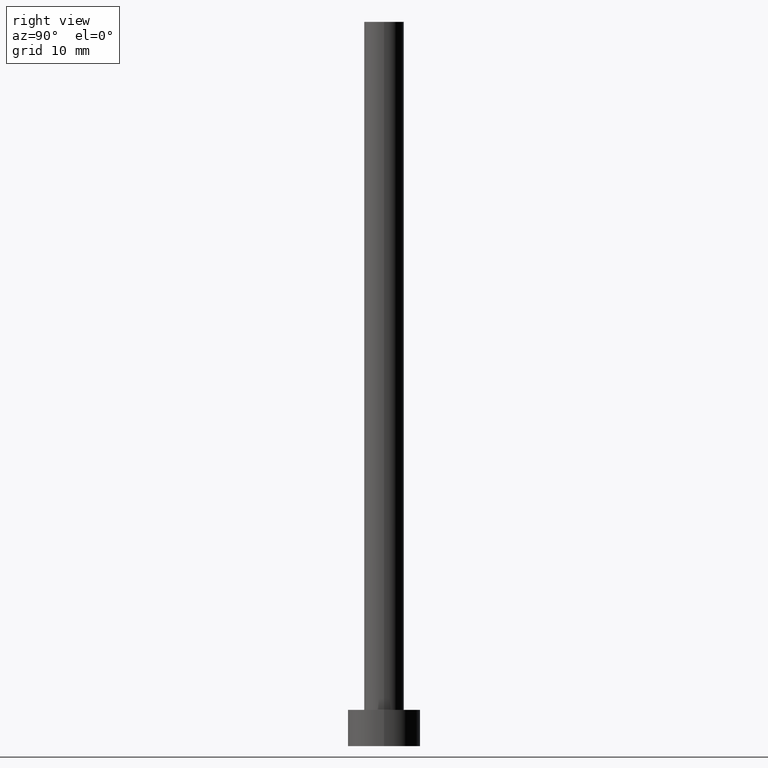
[diagram: clean part render]
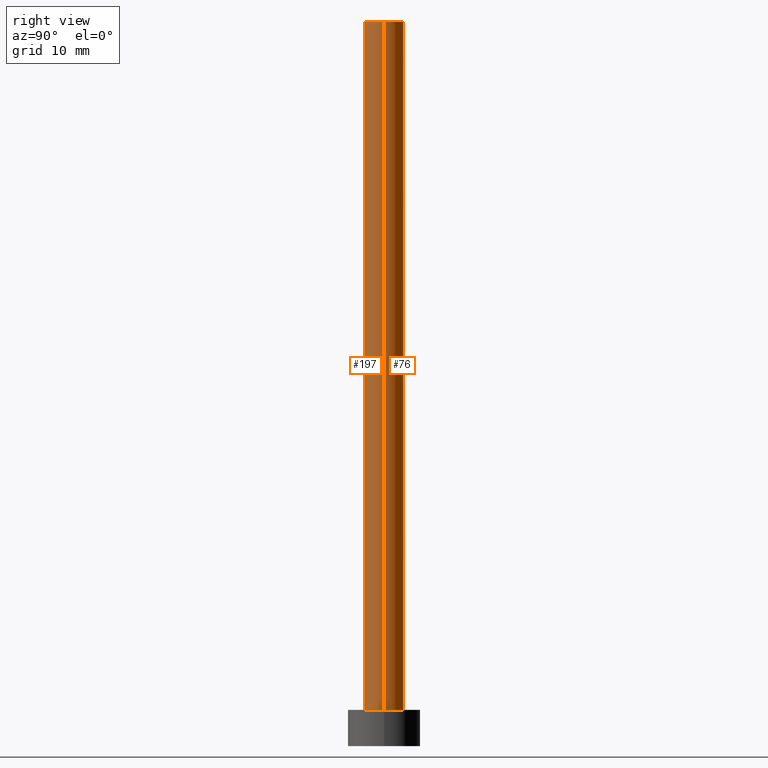
[diagram: same view with one multi-face feature highlighted, each face labeled with its STEP entity id]
A machine part, right view. The highlighted faces form ONE feature: a constant-radius fillet chain: 2 tangent blend faces with common blend radius 2.75 mm. The faces share edges in the B-rep.
Their STEP definitions:
[1] entity #197 (Cylinder):
#18 = CYLINDRICAL_SURFACE ( 'NONE', #47, 2.750000000000000000 ) ;
#21 = CARTESIAN_POINT ( 'NONE',  ( 0.000000000000000000, 0.000000000000000000, 5.000000000000000000 ) ) ;
#24 = VECTOR ( 'NONE', #196, 1000.000000000000000 ) ;
#33 = ORIENTED_EDGE ( 'NONE', *, *, #37, .F. ) ;
#37 = EDGE_CURVE ( 'NONE', #173, #252, #44, .T. ) ;
#44 = LINE ( 'NONE', #224, #24 ) ;
#46 = CARTESIAN_POINT ( 'NONE',  ( 2.750000000000000000, 3.367778697655221012E-16, 5.000000000000000000 ) ) ;
#47 = AXIS2_PLACEMENT_3D ( 'NONE', #165, #149, #88 ) ;
#64 = VERTEX_POINT ( 'NONE', #152 ) ;
#65 = DIRECTION ( 'NONE',  ( 1.000000000000000000, 0.000000000000000000, 0.000000000000000000 ) ) ;
#78 = EDGE_LOOP ( 'NONE', ( #33, #104, #166, #183 ) ) ;
#84 = VECTOR ( 'NONE', #195, 1000.000000000000000 ) ;
#88 = DIRECTION ( 'NONE',  ( -1.000000000000000000, 0.000000000000000000, 0.000000000000000000 ) ) ;
#104 = ORIENTED_EDGE ( 'NONE', *, *, #178, .F. ) ;
#107 = AXIS2_PLACEMENT_3D ( 'NONE', #123, #169, #65 ) ;
#123 = CARTESIAN_POINT ( 'NONE',  ( 0.000000000000000000, 0.000000000000000000, 100.0000000000000000 ) ) ;
#127 = LINE ( 'NONE', #153, #84 ) ;
#128 = AXIS2_PLACEMENT_3D ( 'NONE', #21, #237, #185 ) ;
#147 = CARTESIAN_POINT ( 'NONE',  ( -2.750000000000000000, 0.000000000000000000, 100.0000000000000000 ) ) ;
#149 = DIRECTION ( 'NONE',  ( -0.000000000000000000, -0.000000000000000000, -1.000000000000000000 ) ) ;
#152 = CARTESIAN_POINT ( 'NONE',  ( -2.750000000000000000, 0.000000000000000000, 5.000000000000000000 ) ) ;
#153 = CARTESIAN_POINT ( 'NONE',  ( -2.750000000000000000, 0.000000000000000000, 100.0000000000000000 ) ) ;
#165 = CARTESIAN_POINT ( 'NONE',  ( 0.000000000000000000, 0.000000000000000000, 100.0000000000000000 ) ) ;
#166 = ORIENTED_EDGE ( 'NONE', *, *, #213, .T. ) ;
#169 = DIRECTION ( 'NONE',  ( 0.000000000000000000, 0.000000000000000000, 1.000000000000000000 ) ) ;
#173 = VERTEX_POINT ( 'NONE', #239 ) ;
#178 = EDGE_CURVE ( 'NONE', #184, #173, #214, .T. ) ;
#183 = ORIENTED_EDGE ( 'NONE', *, *, #200, .T. ) ;
#184 = VERTEX_POINT ( 'NONE', #147 ) ;
#185 = DIRECTION ( 'NONE',  ( 1.000000000000000000, 0.000000000000000000, 0.000000000000000000 ) ) ;
#195 = DIRECTION ( 'NONE',  ( -0.000000000000000000, -0.000000000000000000, -1.000000000000000000 ) ) ;
#196 = DIRECTION ( 'NONE',  ( -0.000000000000000000, -0.000000000000000000, -1.000000000000000000 ) ) ;
#197 = ADVANCED_FACE ( 'NONE', ( #205 ), #18, .T. ) ;
#200 = EDGE_CURVE ( 'NONE', #64, #252, #222, .T. ) ;
#205 = FACE_OUTER_BOUND ( 'NONE', #78, .T. ) ;
#213 = EDGE_CURVE ( 'NONE', #184, #64, #127, .T. ) ;
#214 = CIRCLE ( 'NONE', #107, 2.750000000000000000 ) ;
#222 = CIRCLE ( 'NONE', #128, 2.750000000000000000 ) ;
#224 = CARTESIAN_POINT ( 'NONE',  ( 2.750000000000000000, 3.367778697655221012E-16, 100.0000000000000000 ) ) ;
#237 = DIRECTION ( 'NONE',  ( 0.000000000000000000, 0.000000000000000000, 1.000000000000000000 ) ) ;
#239 = CARTESIAN_POINT ( 'NONE',  ( 2.750000000000000000, 3.367778697655221012E-16, 100.0000000000000000 ) ) ;
#252 = VERTEX_POINT ( 'NONE', #46 ) ;
[2] entity #76 (Cylinder):
#11 = DIRECTION ( 'NONE',  ( 1.000000000000000000, 0.000000000000000000, 0.000000000000000000 ) ) ;
#12 = CIRCLE ( 'NONE', #40, 2.750000000000000000 ) ;
#16 = ORIENTED_EDGE ( 'NONE', *, *, #37, .T. ) ;
#24 = VECTOR ( 'NONE', #196, 1000.000000000000000 ) ;
#32 = EDGE_CURVE ( 'NONE', #173, #184, #54, .T. ) ;
#35 = DIRECTION ( 'NONE',  ( -1.000000000000000000, 0.000000000000000000, 0.000000000000000000 ) ) ;
#37 = EDGE_CURVE ( 'NONE', #173, #252, #44, .T. ) ;
#40 = AXIS2_PLACEMENT_3D ( 'NONE', #111, #227, #11 ) ;
#44 = LINE ( 'NONE', #224, #24 ) ;
#46 = CARTESIAN_POINT ( 'NONE',  ( 2.750000000000000000, 3.367778697655221012E-16, 5.000000000000000000 ) ) ;
#54 = CIRCLE ( 'NONE', #112, 2.750000000000000000 ) ;
#64 = VERTEX_POINT ( 'NONE', #152 ) ;
#76 = ADVANCED_FACE ( 'NONE', ( #242 ), #206, .T. ) ;
#84 = VECTOR ( 'NONE', #195, 1000.000000000000000 ) ;
#86 = CARTESIAN_POINT ( 'NONE',  ( 0.000000000000000000, 0.000000000000000000, 100.0000000000000000 ) ) ;
#89 = CARTESIAN_POINT ( 'NONE',  ( 0.000000000000000000, 0.000000000000000000, 100.0000000000000000 ) ) ;
#111 = CARTESIAN_POINT ( 'NONE',  ( 0.000000000000000000, 0.000000000000000000, 5.000000000000000000 ) ) ;
#112 = AXIS2_PLACEMENT_3D ( 'NONE', #86, #226, #194 ) ;
#119 = AXIS2_PLACEMENT_3D ( 'NONE', #89, #141, #35 ) ;
#121 = ORIENTED_EDGE ( 'NONE', *, *, #250, .T. ) ;
#127 = LINE ( 'NONE', #153, #84 ) ;
#139 = EDGE_LOOP ( 'NONE', ( #216, #16, #121, #236 ) ) ;
#141 = DIRECTION ( 'NONE',  ( -0.000000000000000000, -0.000000000000000000, -1.000000000000000000 ) ) ;
#147 = CARTESIAN_POINT ( 'NONE',  ( -2.750000000000000000, 0.000000000000000000, 100.0000000000000000 ) ) ;
#152 = CARTESIAN_POINT ( 'NONE',  ( -2.750000000000000000, 0.000000000000000000, 5.000000000000000000 ) ) ;
#153 = CARTESIAN_POINT ( 'NONE',  ( -2.750000000000000000, 0.000000000000000000, 100.0000000000000000 ) ) ;
#173 = VERTEX_POINT ( 'NONE', #239 ) ;
#184 = VERTEX_POINT ( 'NONE', #147 ) ;
#194 = DIRECTION ( 'NONE',  ( 1.000000000000000000, 0.000000000000000000, 0.000000000000000000 ) ) ;
#195 = DIRECTION ( 'NONE',  ( -0.000000000000000000, -0.000000000000000000, -1.000000000000000000 ) ) ;
#196 = DIRECTION ( 'NONE',  ( -0.000000000000000000, -0.000000000000000000, -1.000000000000000000 ) ) ;
#206 = CYLINDRICAL_SURFACE ( 'NONE', #119, 2.750000000000000000 ) ;
#213 = EDGE_CURVE ( 'NONE', #184, #64, #127, .T. ) ;
#216 = ORIENTED_EDGE ( 'NONE', *, *, #32, .F. ) ;
#224 = CARTESIAN_POINT ( 'NONE',  ( 2.750000000000000000, 3.367778697655221012E-16, 100.0000000000000000 ) ) ;
#226 = DIRECTION ( 'NONE',  ( 0.000000000000000000, 0.000000000000000000, 1.000000000000000000 ) ) ;
#227 = DIRECTION ( 'NONE',  ( 0.000000000000000000, 0.000000000000000000, 1.000000000000000000 ) ) ;
#236 = ORIENTED_EDGE ( 'NONE', *, *, #213, .F. ) ;
#239 = CARTESIAN_POINT ( 'NONE',  ( 2.750000000000000000, 3.367778697655221012E-16, 100.0000000000000000 ) ) ;
#242 = FACE_OUTER_BOUND ( 'NONE', #139, .T. ) ;
#250 = EDGE_CURVE ( 'NONE', #252, #64, #12, .T. ) ;
#252 = VERTEX_POINT ( 'NONE', #46 ) ;